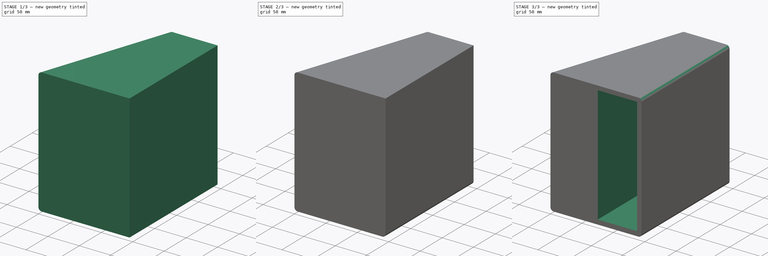
[diagram: build sequence overview — one tinted view per stage of 3, left to right]
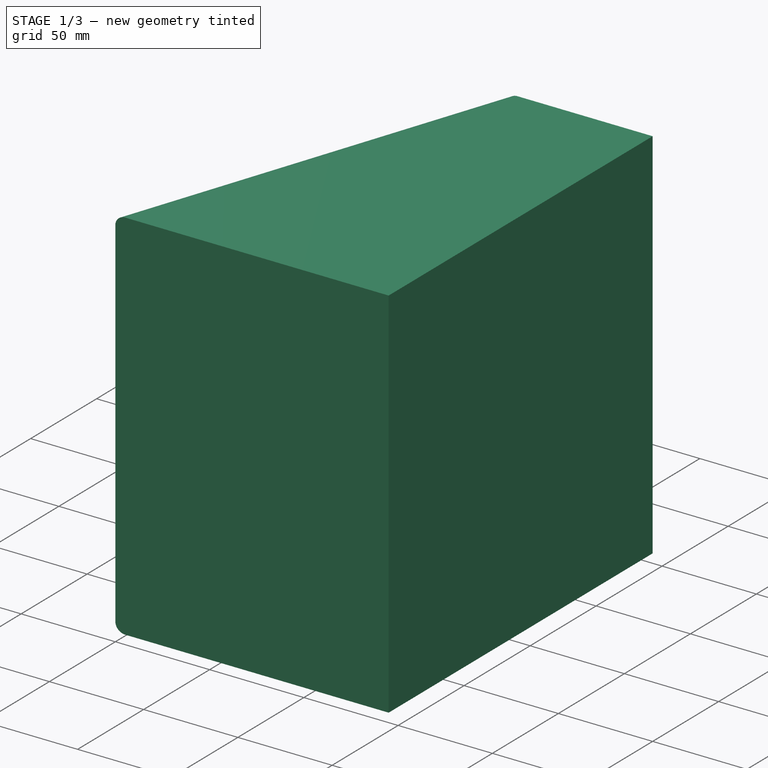
[diagram: stage 1 of 3 — iso view after this stage's code; geometry added in this stage tinted green]
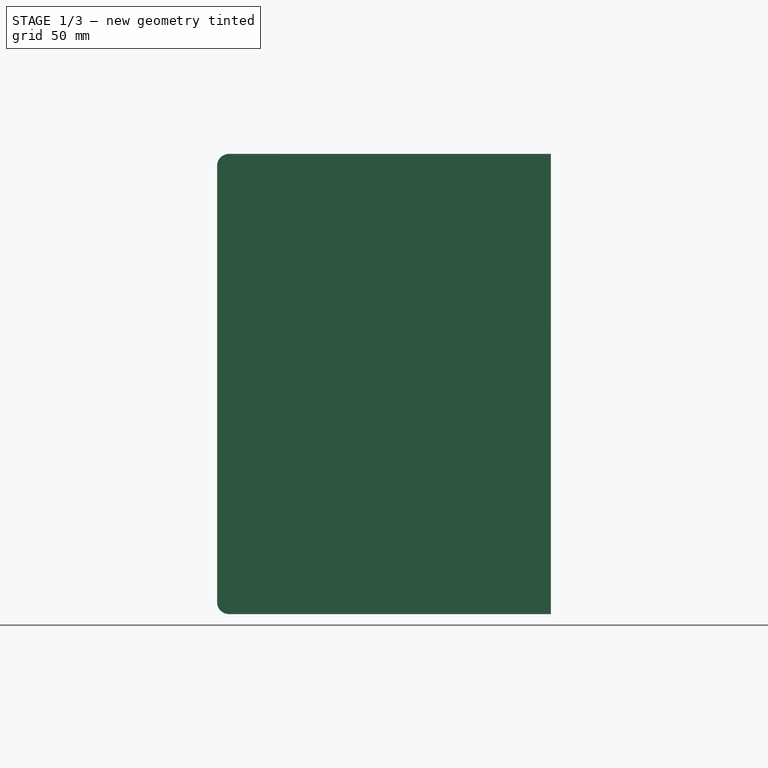
[diagram: stage 1 of 3 — front view after this stage's code; geometry added in this stage tinted green]
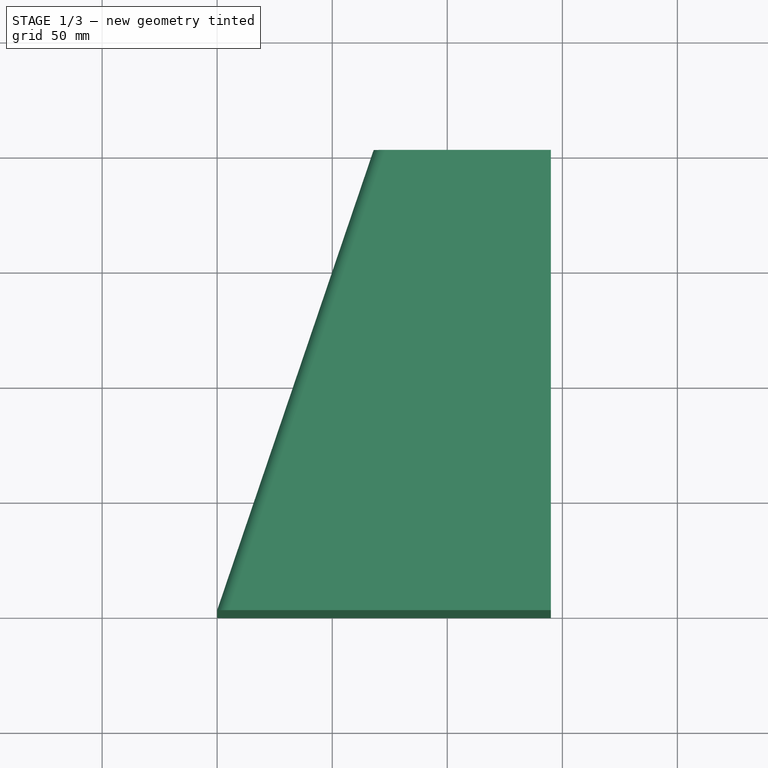
[diagram: stage 1 of 3 — top view after this stage's code; geometry added in this stage tinted green]
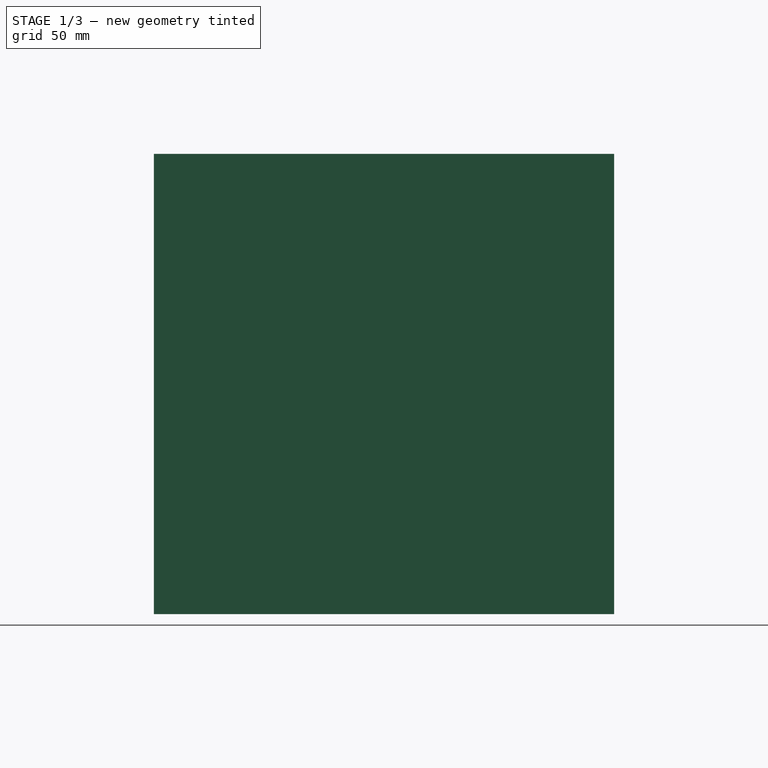
[diagram: stage 1 of 3 — right view after this stage's code; geometry added in this stage tinted green]
FCSTD DOCUMENT  (FreeCAD 0.19R24267 (Git))
Label: Instrument Box Cover
License: All rights reserved
LicenseURL: http://en.wikipedia.org/wiki/All_rights_reserved
objects: PartDesign::Fillet×3, Sketcher::SketchObject×2, PartDesign::Pad×1, PartDesign::Pocket×1, PartDesign::Body×1
note: 13 computed .brp shape members not serialized (recipe doc carries the construction recipe); baked Part::Feature solids carry a one-line shape summary decoded from their .brp

FEATURE [Sketcher::SketchObject] Sketch017
  FullyConstrained = true
  MapMode = 5
  Support = -> [XY_Plane006]
  sketch-geometry (4):
    g0: LineSegment StartX=0 StartY=0 StartZ=0 EndX=145 EndY=0 EndZ=0
    g1: LineSegment StartX=145 StartY=0 StartZ=0 EndX=145 EndY=200 EndZ=0
    g2: LineSegment StartX=145 StartY=200 StartZ=0 EndX=68 EndY=200 EndZ=0
    g3: LineSegment StartX=68 StartY=200 StartZ=0 EndX=0 EndY=0 EndZ=0
  constraints (11):
    c: Coincident(g0,g-1)
    c: PointOnObject(g0,g-1)
    c: DistanceX(g0,g0) = 145
    c: Coincident(g1,g0)
    c: Vertical(g1)
    c: DistanceY(g1,g1) = 200
    c: Coincident(g2,g1)
    c: Horizontal(g2)
    c: DistanceX(g2,g2) = 77
    c: Coincident(g3,g2)
    c: Coincident(g3,g0)
FEATURE [PartDesign::Pad] Pad010
  Direction = (1,1,1)
  Length = 200
  Length2 = 100
  Profile = -> Sketch017
  Type = 0
FEATURE [PartDesign::Fillet] Fillet035
  Base = -> Pad010 [Edge11,Edge12]
  BaseFeature = -> Pad010
  Radius = 5
  SupportTransform = false
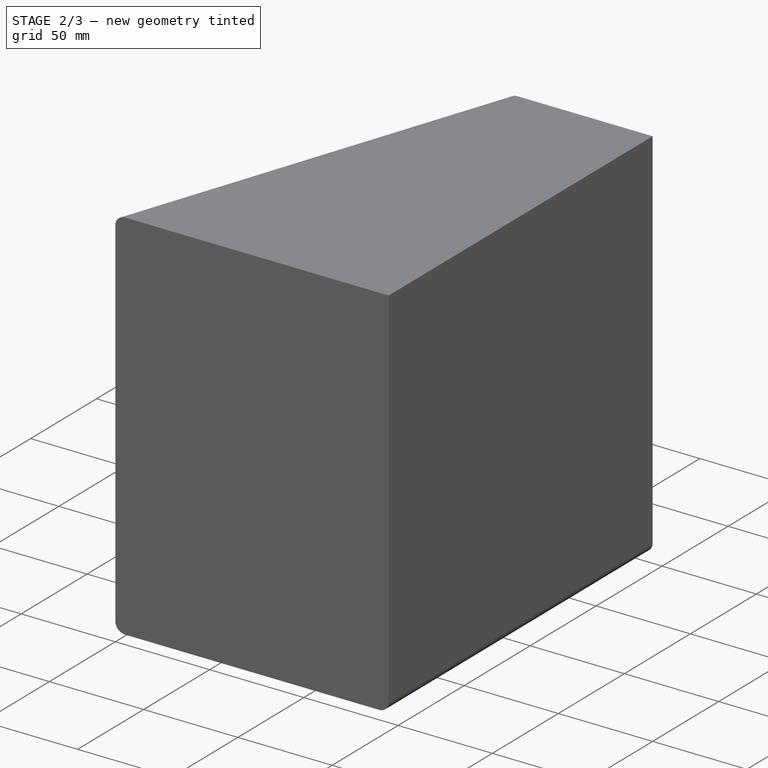
[diagram: stage 2 of 3 — iso view after this stage's code; geometry added in this stage tinted green]
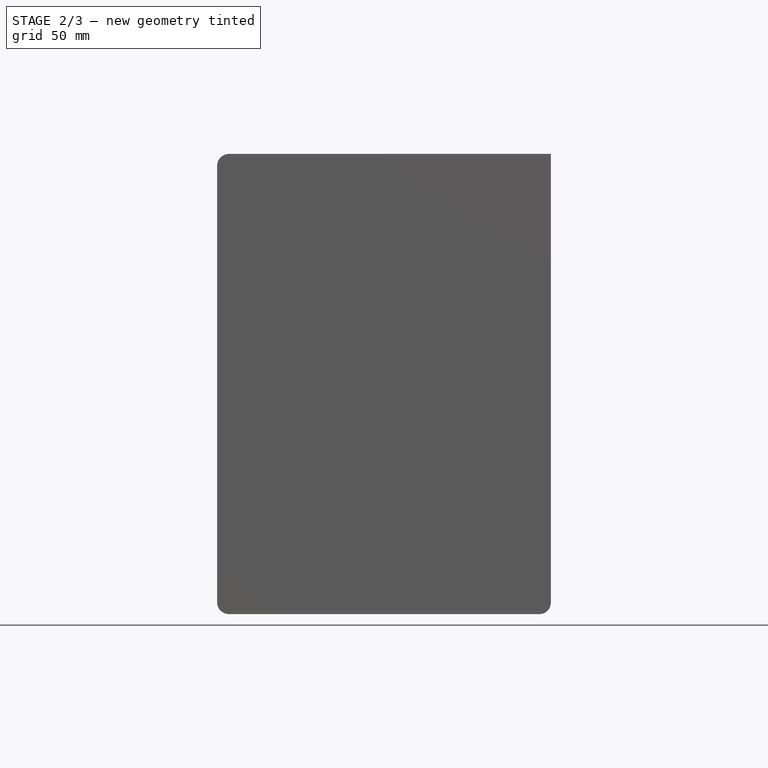
[diagram: stage 2 of 3 — front view after this stage's code; geometry added in this stage tinted green]
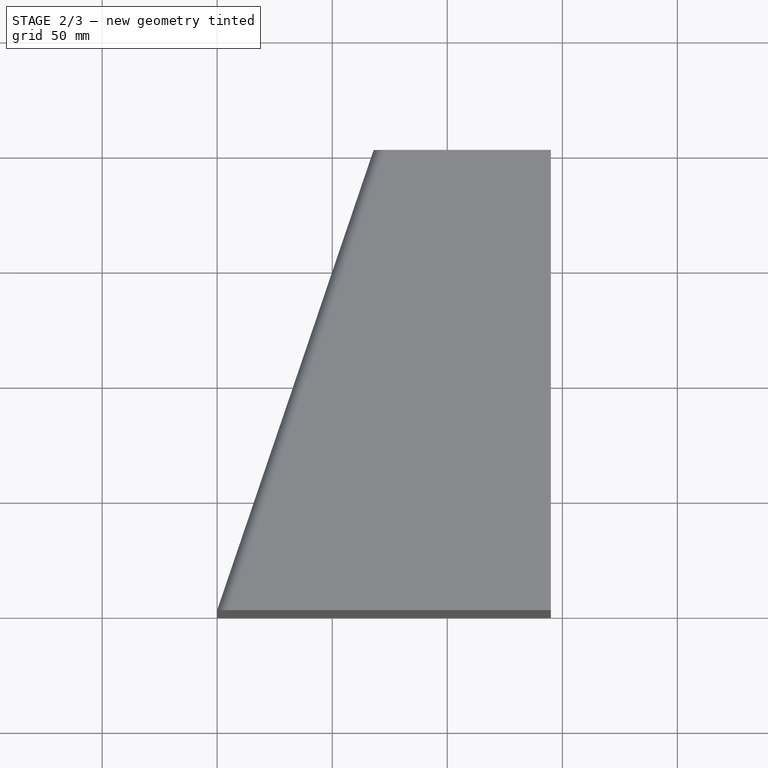
[diagram: stage 2 of 3 — top view after this stage's code; geometry added in this stage tinted green]
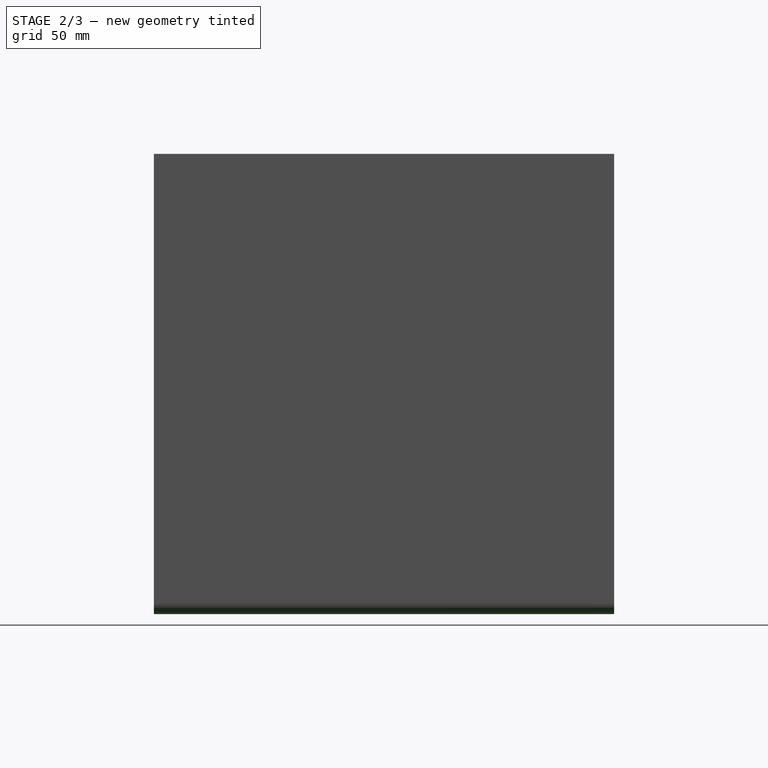
[diagram: stage 2 of 3 — right view after this stage's code; geometry added in this stage tinted green]
FEATURE [PartDesign::Fillet] Fillet034
  Base = -> Fillet035 [Edge14]
  BaseFeature = -> Fillet035
  Radius = 5
  SupportTransform = false
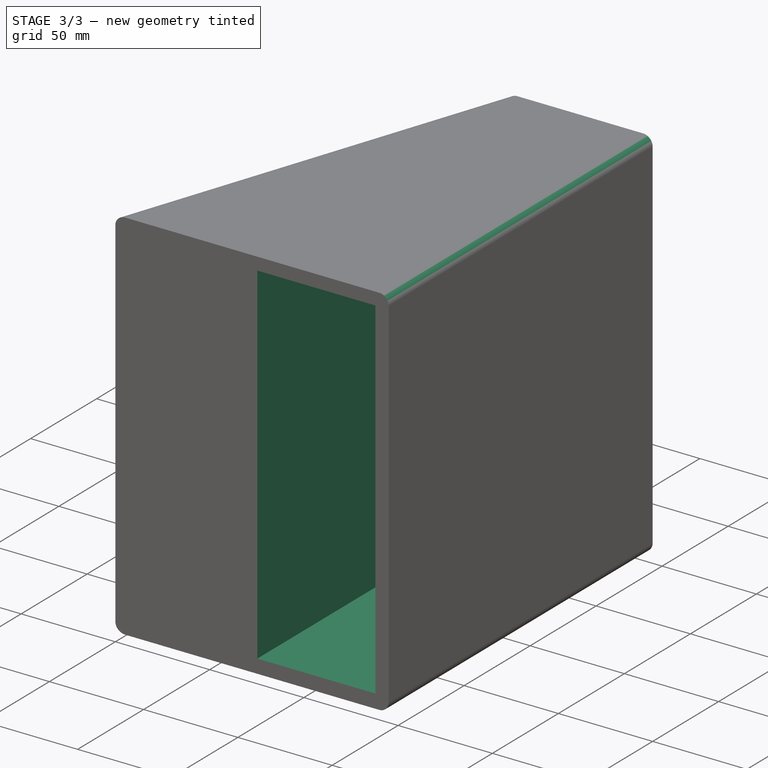
[diagram: stage 3 of 3 — iso view after this stage's code; geometry added in this stage tinted green]
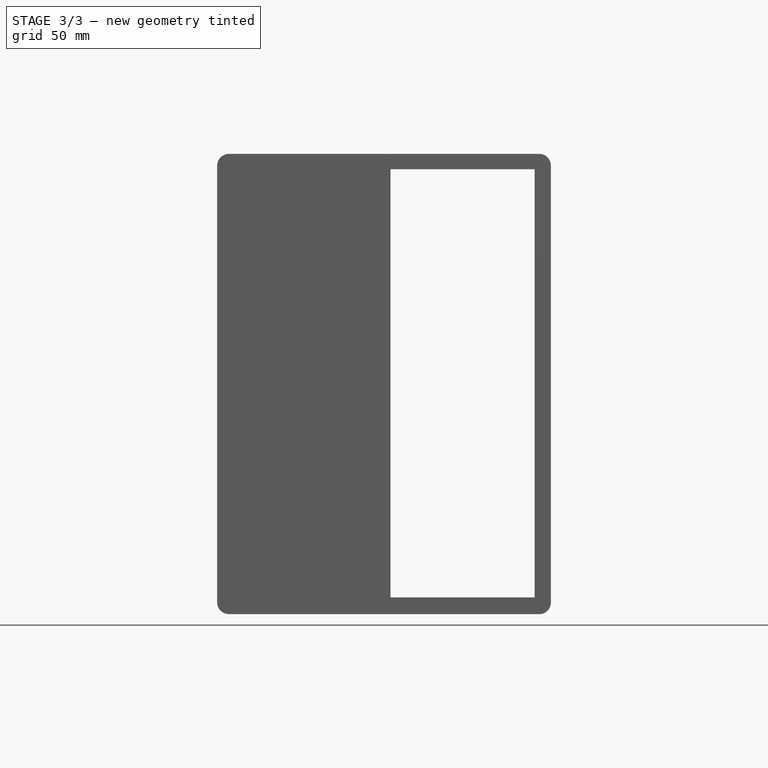
[diagram: stage 3 of 3 — front view after this stage's code; geometry added in this stage tinted green]
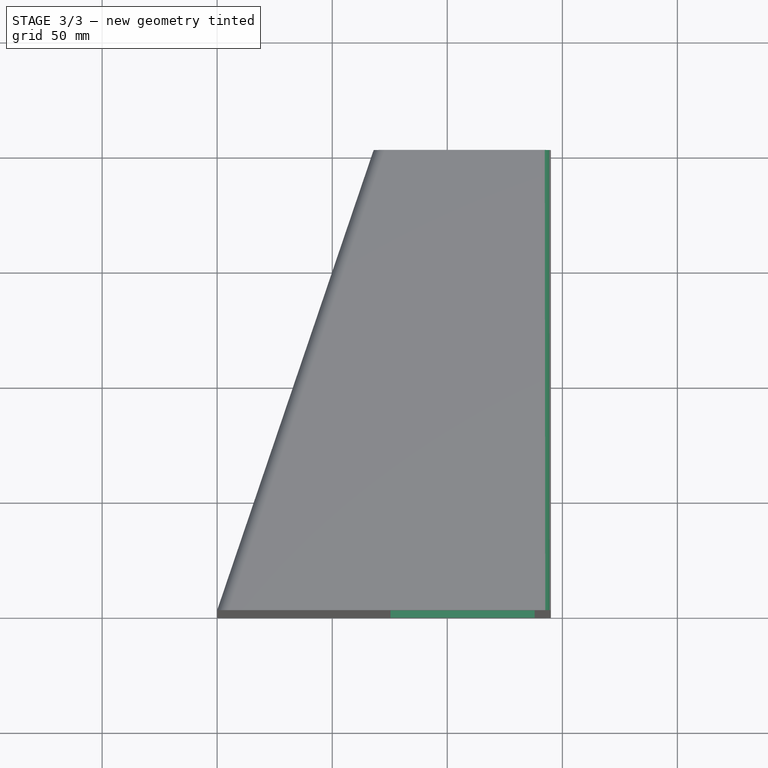
[diagram: stage 3 of 3 — top view after this stage's code; geometry added in this stage tinted green]
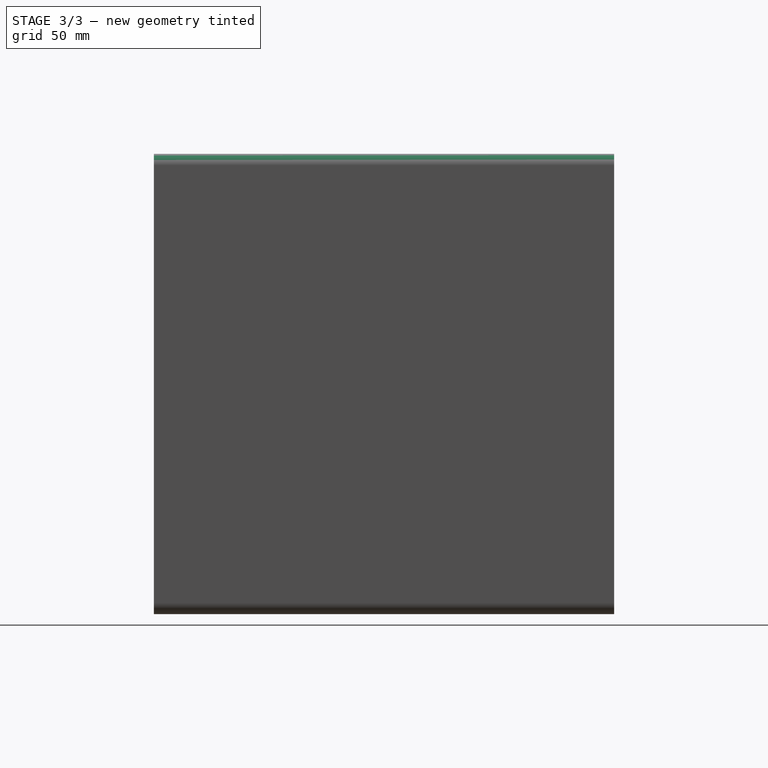
[diagram: stage 3 of 3 — right view after this stage's code; geometry added in this stage tinted green]
FEATURE [PartDesign::Fillet] Fillet036
  Base = -> Fillet034 [Edge15]
  BaseFeature = -> Fillet034
  Radius = 5
  SupportTransform = false
FEATURE [Sketcher::SketchObject] Sketch016
  FullyConstrained = false
  MapMode = 5
  Placement = pos=(0,200,0) rot=(0,0.707107,0.707107;3.14159rad)
  Support = -> [Fillet036]
  sketch-geometry (4):
    g0: LineSegment StartX=-137.96 StartY=193.346 StartZ=0 EndX=-75.3165 EndY=193.346 EndZ=0
    g1: LineSegment StartX=-75.3165 StartY=193.346 StartZ=0 EndX=-75.3165 EndY=7.29364 EndZ=0
    g2: LineSegment StartX=-75.3165 StartY=7.29364 StartZ=0 EndX=-137.96 EndY=7.29364 EndZ=0
    g3: LineSegment StartX=-137.96 StartY=7.29364 StartZ=0 EndX=-137.96 EndY=193.346 EndZ=0
  constraints (8):
    c: Coincident(g0,g1)
    c: Coincident(g1,g2)
    c: Coincident(g2,g3)
    c: Coincident(g3,g0)
    c: Horizontal(g0)
    c: Horizontal(g2)
    c: Vertical(g1)
    c: Vertical(g3)
FEATURE [PartDesign::Pocket] Pocket
  BaseFeature = -> Fillet036
  Length = 200
  Length2 = 100
  Profile = -> Sketch016
  Type = 0
FEATURE [PartDesign::Body] Body006  label="Instrument Box"
  Group = -> [Sketch017,Pad010,Fillet035,Fillet034,Fillet036,Sketch016,Pocket]
  Origin = -> Origin006
  Placement = pos=(-170,-92,-9) rot=(0,0.707107,0.707107;3.14159rad)
  Tip = -> Pocket
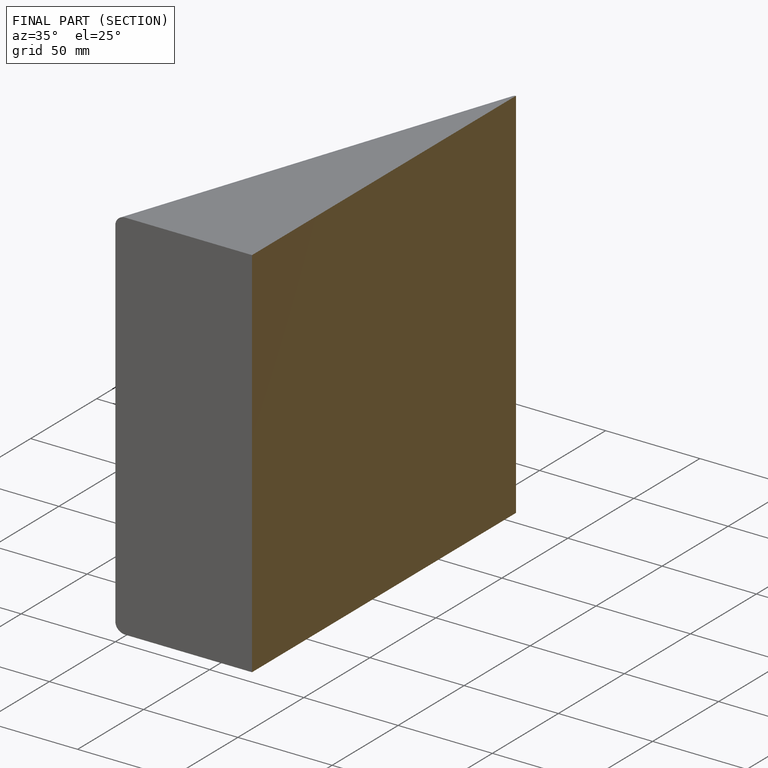
[diagram: finished part — half-section view (interior)]
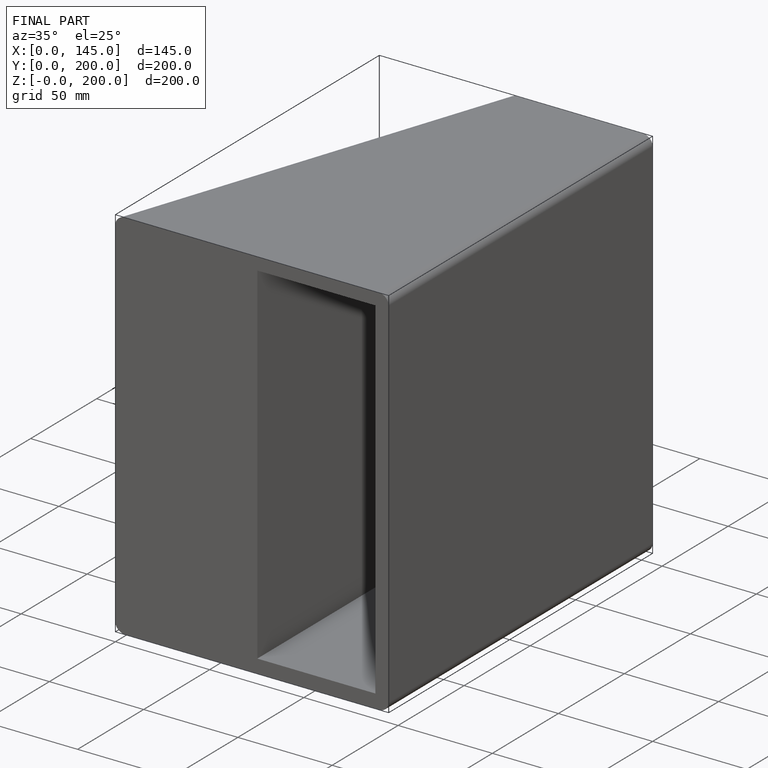
[diagram: finished part — iso view with bounding-box wireframe]
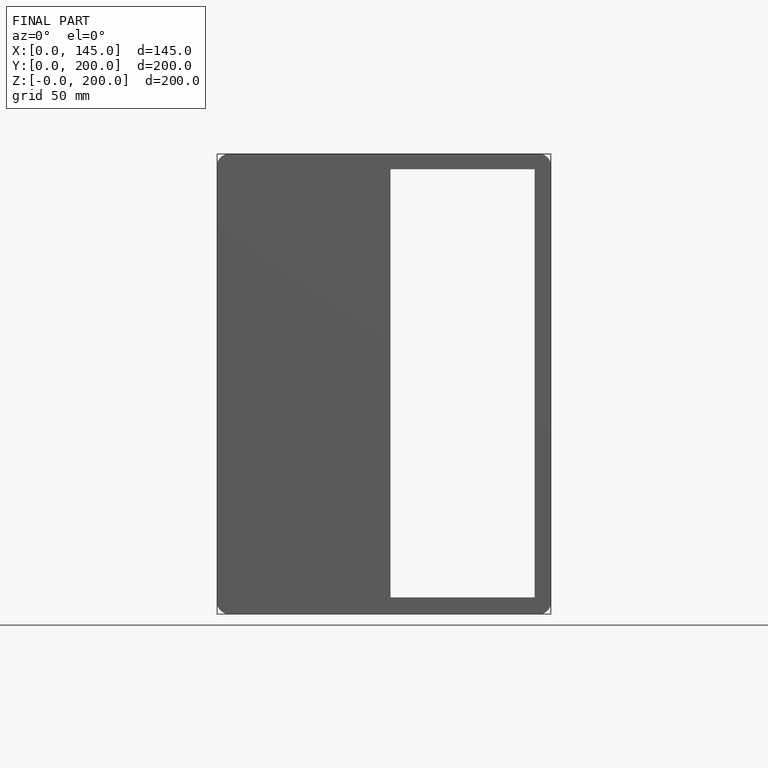
[diagram: finished part — front view with bounding-box wireframe]
